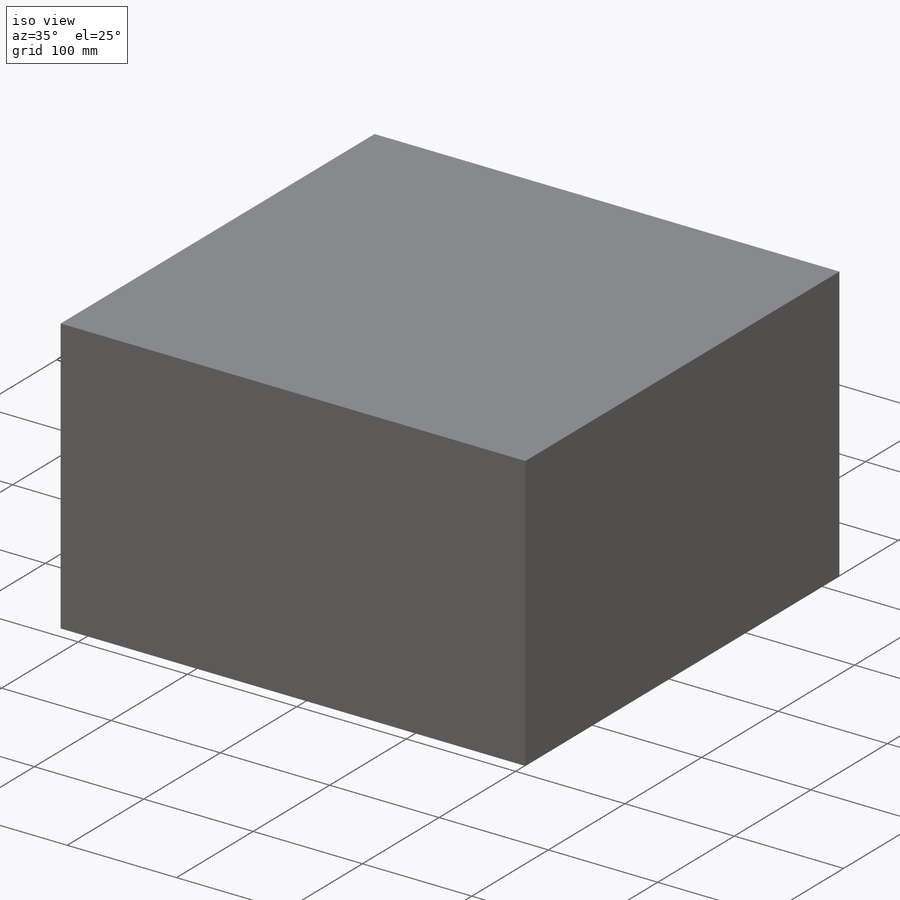
[diagram: iso view]
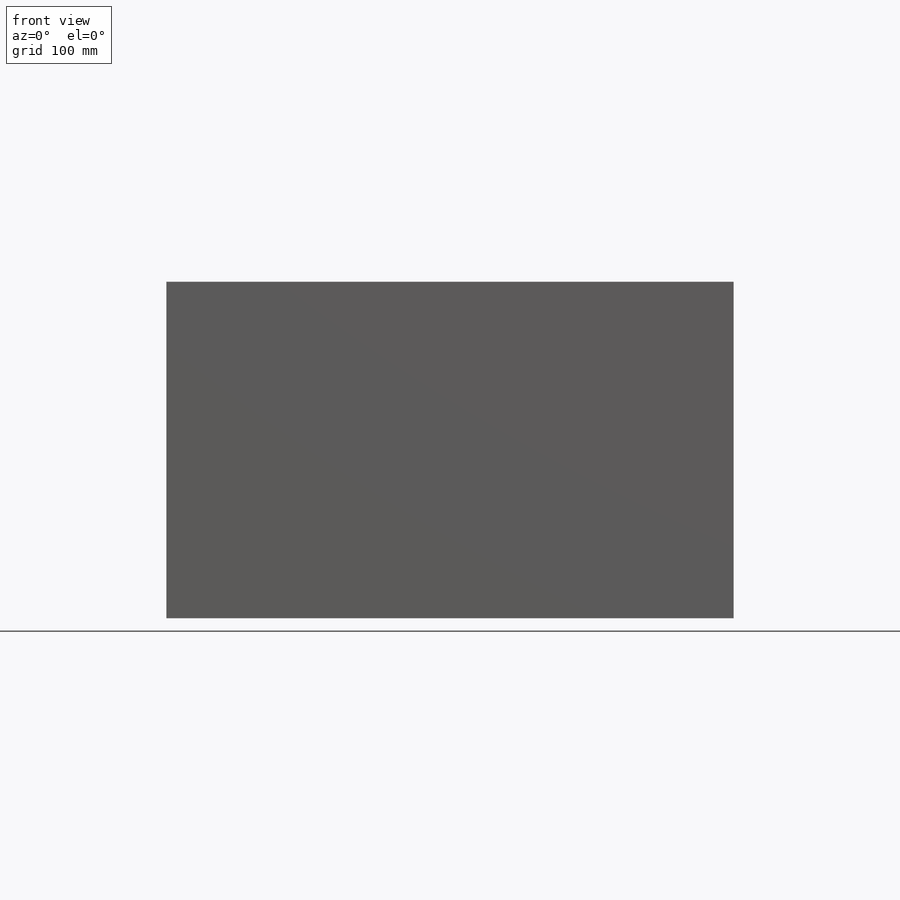
[diagram: front view]
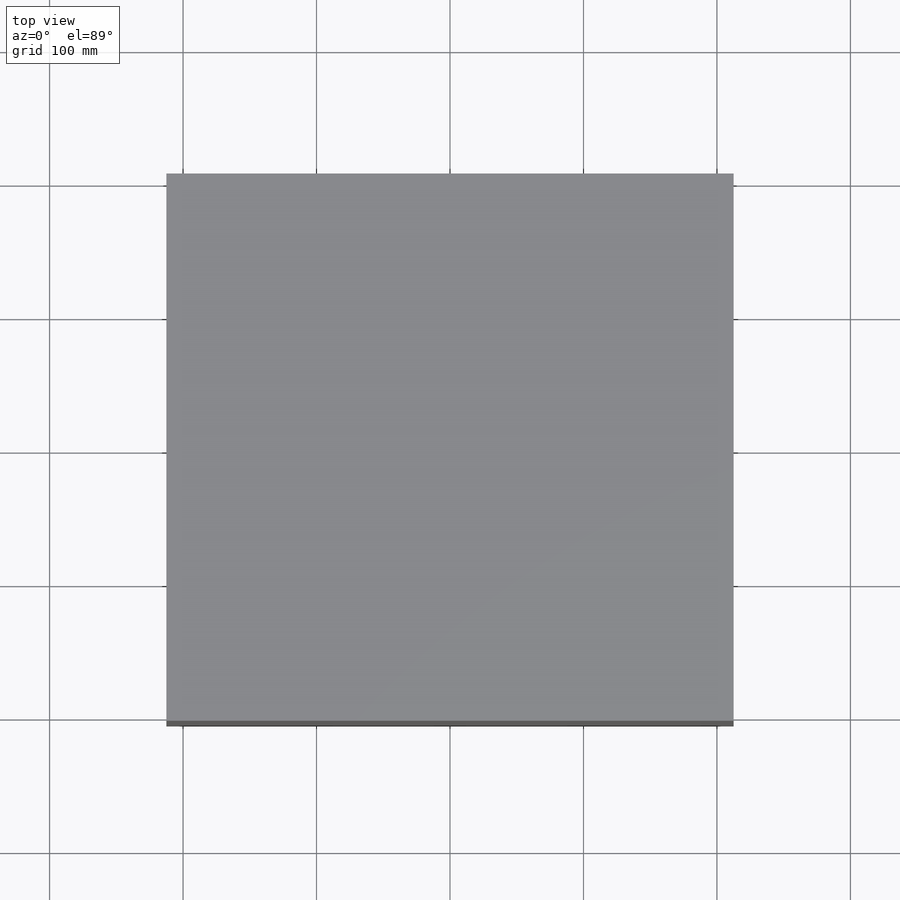
[diagram: top view]
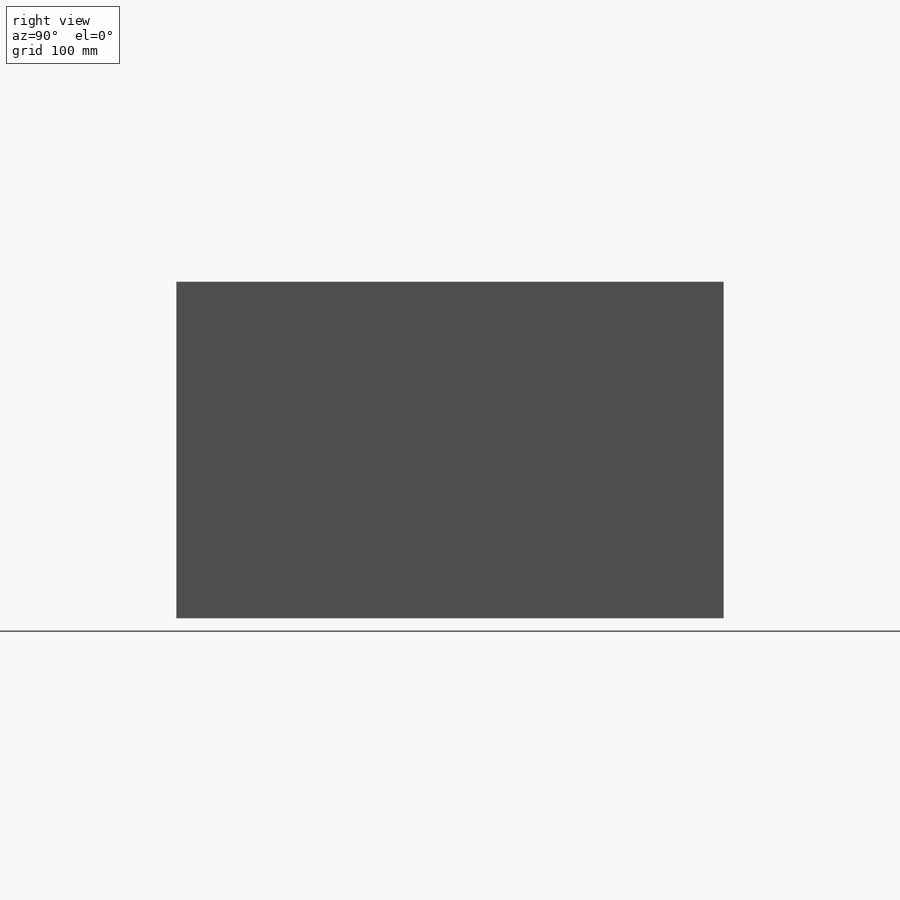
[diagram: right view]
SOLIDWORKS PART (.sldprt)
format: sldprt  version: not decoded by parser v0  size: 367,616 bytes
history: native  units: mm
features: sketch x4, extrude x3, material x1 (+13 scaffold rows collapsed)
feature tree (21):
  scaffold x13  (default folders/planes/origin — collapsed)
  material  "1060 Alloy"
  sketch  "Sketch1"  dims[D1=425.0mm D2=410.0mm]
  extrude  "Bottom"  Depth=3.175mm
  sketch  "Sketch2"  dims[D1=2.286mm D2=0.0mm D3=1.143mm D4=1.143mm D5=1.143mm D6=1.143mm]
  extrude  "Sides"  Depth=246.6mm
  sketch  "Sketch3"
  extrude  "Top"  Depth=2.286mm
  sketch  "Sketch4"  dims[D1=62.0mm D2=100.0mm D3=62.0mm D4=62.0mm D5=62.0mm D6=62.0mm D7=62.0mm D8=7.6mm D9=7.6mm D10=7.6mm D11=7.6mm D12=20.0mm]
decode coverage: 6 of 7 modeling features carry decoded parameters
note: suppression state not decoded; provenance and decode notes live in map.json
